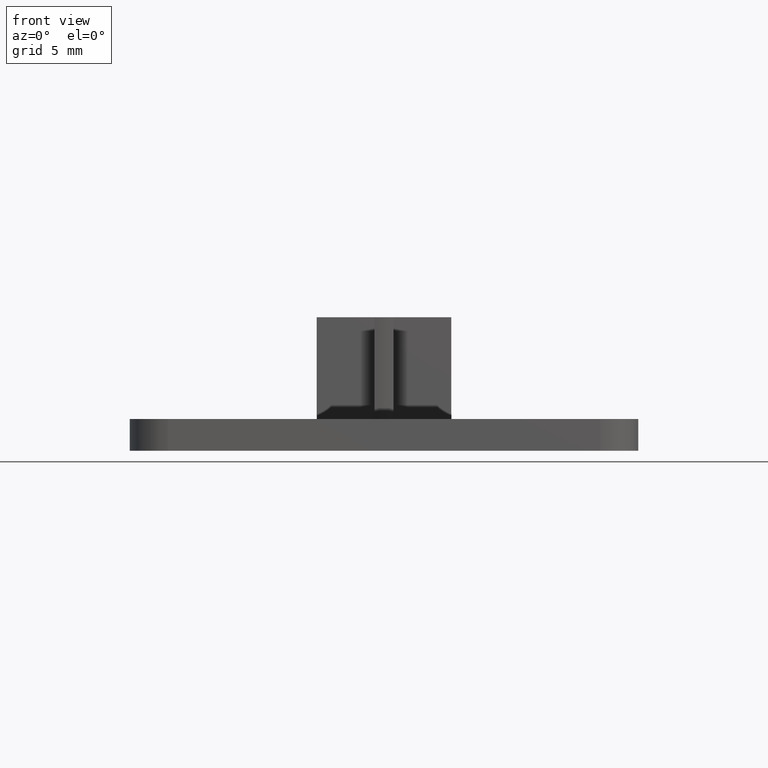
[diagram: clean part render]
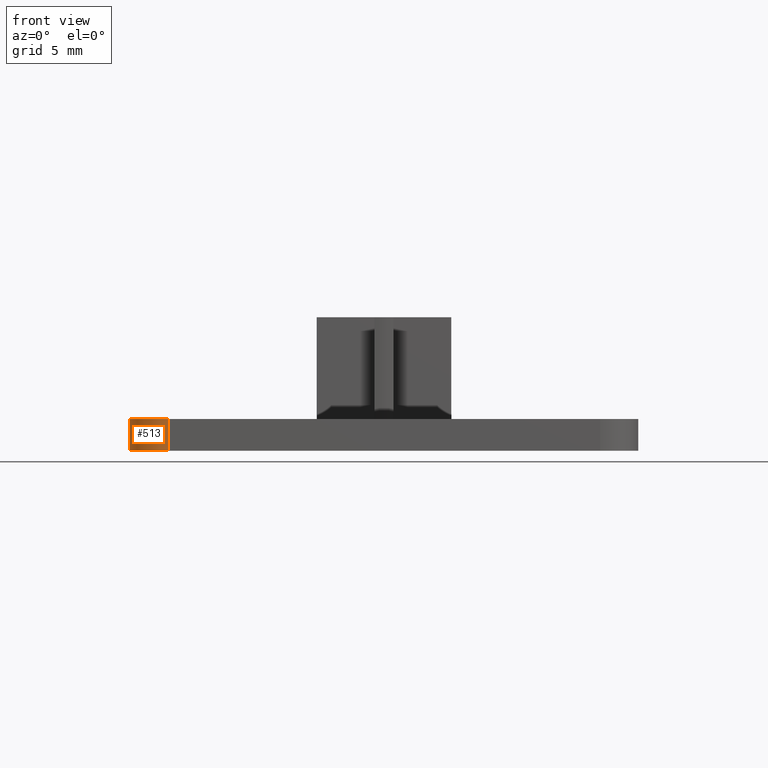
[diagram: same view with one face highlighted and labeled with its STEP entity id]
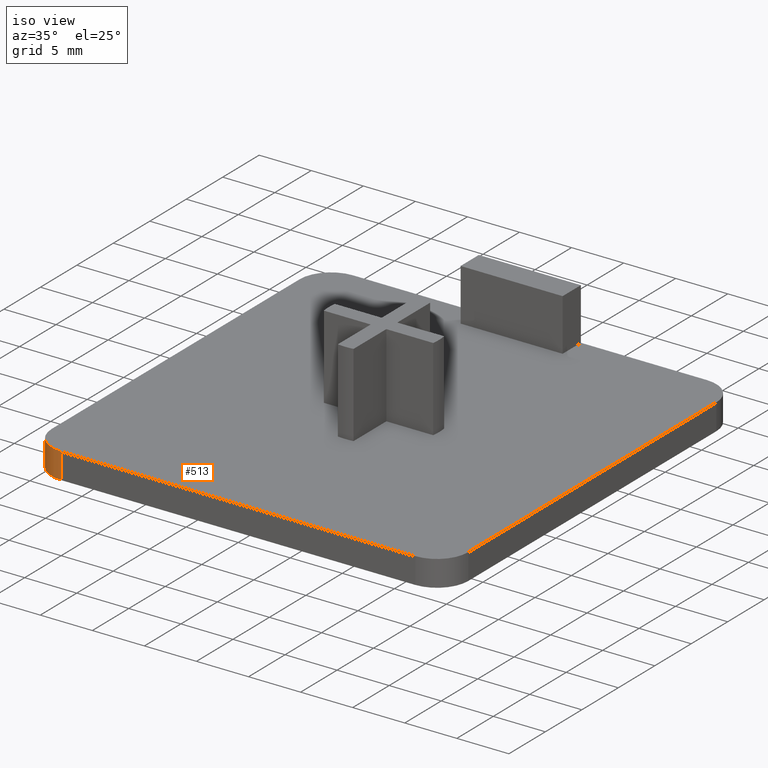
[diagram: same view with one face highlighted and labeled with its STEP entity id]
A machine part, front view. The second image highlights one B-rep face of the part: STEP entity #513.
A second angle (iso view) of the same face is appended — the face is thin or edge-on in the first view.
In plain terms, the highlighted cylindrical surface (partial cylindrical patch) has radius 3 mm, axis along (0, 0, 1).
Its self-contained STEP definition (entity closure, byte-faithful):
#26=CIRCLE('',#548,3.);
#30=CIRCLE('',#557,3.);
#38=CYLINDRICAL_SURFACE('',#556,3.);
#63=FACE_OUTER_BOUND('',#90,.T.);
#90=EDGE_LOOP('',(#435,#436,#437,#438));
#147=LINE('',#842,#203);
#148=LINE('',#846,#204);
#203=VECTOR('',#690,2.5);
#204=VECTOR('',#695,2.5);
#246=VERTEX_POINT('',#820);
#247=VERTEX_POINT('',#822);
#252=VERTEX_POINT('',#840);
#253=VERTEX_POINT('',#844);
#311=EDGE_CURVE('',#247,#246,#26,.T.);
#321=EDGE_CURVE('',#246,#252,#147,.T.);
#322=EDGE_CURVE('',#253,#252,#30,.T.);
#323=EDGE_CURVE('',#247,#253,#148,.T.);
#435=ORIENTED_EDGE('',*,*,#311,.T.);
#436=ORIENTED_EDGE('',*,*,#321,.T.);
#437=ORIENTED_EDGE('',*,*,#322,.F.);
#438=ORIENTED_EDGE('',*,*,#323,.F.);
#513=ADVANCED_FACE('',(#63),#38,.T.);
#548=AXIS2_PLACEMENT_3D('',#823,#668,#669);
#556=AXIS2_PLACEMENT_3D('',#843,#691,#692);
#557=AXIS2_PLACEMENT_3D('',#845,#693,#694);
#668=DIRECTION('center_axis',(0.,0.,1.));
#669=DIRECTION('ref_axis',(-1.,0.,0.));
#690=DIRECTION('',(0.,0.,1.));
#691=DIRECTION('center_axis',(0.,0.,1.));
#692=DIRECTION('ref_axis',(-1.,0.,0.));
#693=DIRECTION('center_axis',(0.,0.,1.));
#694=DIRECTION('ref_axis',(-1.,0.,0.));
#695=DIRECTION('',(0.,0.,1.));
#820=CARTESIAN_POINT('',(-17.,-20.,0.));
#822=CARTESIAN_POINT('',(-20.,-17.,0.));
#823=CARTESIAN_POINT('Origin',(-17.,-17.,0.));
#840=CARTESIAN_POINT('',(-17.,-20.,2.5));
#842=CARTESIAN_POINT('',(-17.,-20.,0.));
#843=CARTESIAN_POINT('Origin',(-17.,-17.,0.));
#844=CARTESIAN_POINT('',(-20.,-17.,2.5));
#845=CARTESIAN_POINT('Origin',(-17.,-17.,2.5));
#846=CARTESIAN_POINT('',(-20.,-17.,0.));